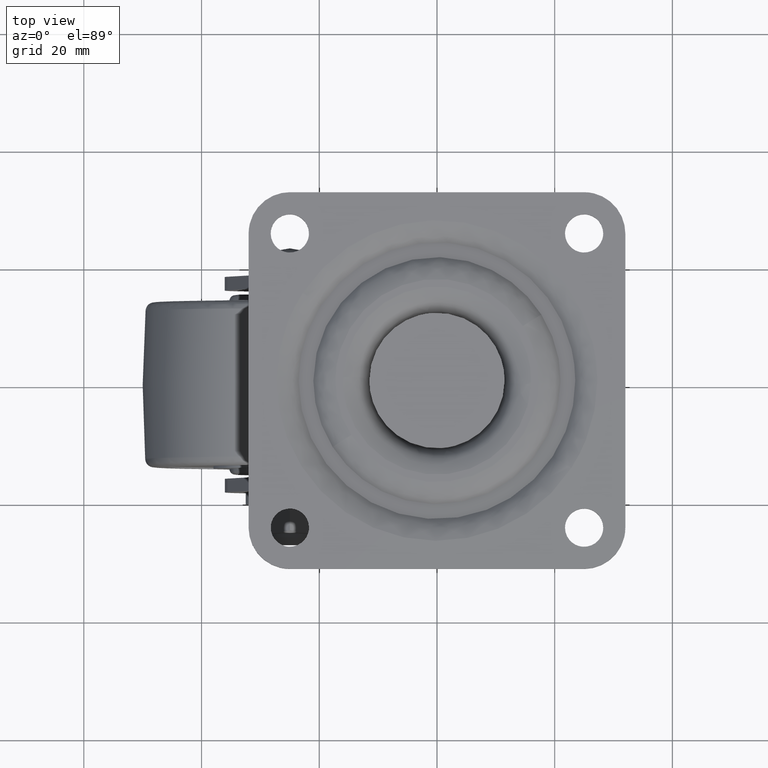
[diagram: clean part render]
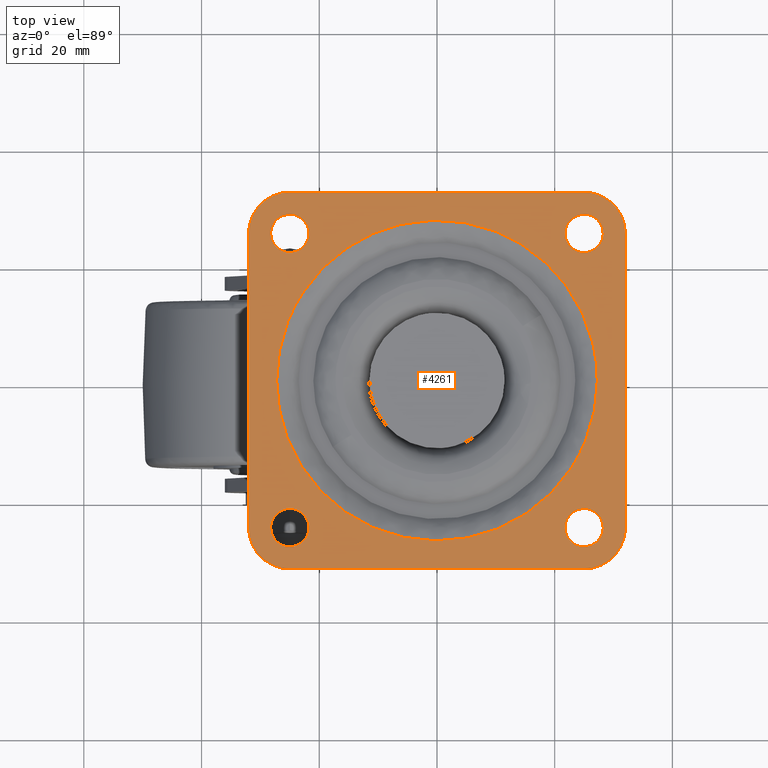
[diagram: same view with one face highlighted and labeled with its STEP entity id]
A machine part, top view. The second image highlights one B-rep face of the part: STEP entity #4261.
In plain terms, the highlighted face is a freeform B-spline surface patch.
Its self-contained STEP definition (entity closure, byte-faithful):
#2399=CARTESIAN_POINT('',(-25.198407753658440,21.756061905139340,1.249001E-016));
#2400=VERTEX_POINT('',#2399);
#2401=CARTESIAN_POINT('',(-21.750000000000000,25.0,0.0));
#2402=VERTEX_POINT('',#2401);
#2403=CARTESIAN_POINT('',(-25.198407753658440,21.756061905139337,0.0));
#2404=CARTESIAN_POINT('',(-25.099296480805727,21.750000000000007,0.0));
#2405=CARTESIAN_POINT('',(-25.0,21.750000000000000,0.0));
#2406=CARTESIAN_POINT('',(-21.750000000000004,21.750000000000004,0.0));
#2407=CARTESIAN_POINT('',(-21.750000000000000,25.0,0.0));
#2415=(BOUNDED_CURVE()B_SPLINE_CURVE(2,(#2403,#2404,#2405,#2406,#2407),.UNSPECIFIED.,.F.,.U.)B_SPLINE_CURVE_WITH_KNOTS((3,2,3),(0.239332962232918,0.250000000000000,0.500000000000000),.UNSPECIFIED.)CURVE()GEOMETRIC_REPRESENTATION_ITEM()RATIONAL_B_SPLINE_CURVE((0.976072041653805,0.987502787892779,1.0,0.707106781186547,1.0))REPRESENTATION_ITEM(''));
#2416=EDGE_CURVE('',#2400,#2402,#2415,.T.);
#2418=CARTESIAN_POINT('',(-24.801592246341560,28.243938094860660,1.249001E-016));
#2419=VERTEX_POINT('',#2418);
#2420=CARTESIAN_POINT('',(-21.750000000000000,25.0,0.0));
#2421=CARTESIAN_POINT('',(-21.750000000000007,28.057294717282854,0.0));
#2422=CARTESIAN_POINT('',(-24.801592246341567,28.243938094860660,0.0));
#2430=(BOUNDED_CURVE()B_SPLINE_CURVE(2,(#2420,#2421,#2422),.UNSPECIFIED.,.F.,.U.)B_SPLINE_CURVE_WITH_KNOTS((3,3),(0.500000000000000,0.739332962232918),.UNSPECIFIED.)CURVE()GEOMETRIC_REPRESENTATION_ITEM()RATIONAL_B_SPLINE_CURVE((1.0,0.719603993293769,0.976072041653806))REPRESENTATION_ITEM(''));
#2431=EDGE_CURVE('',#2402,#2419,#2430,.T.);
#2498=CARTESIAN_POINT('',(-28.250000000000000,25.0,0.0));
#2499=VERTEX_POINT('',#2498);
#2500=CARTESIAN_POINT('',(-28.250000000000000,25.0,0.0));
#2501=CARTESIAN_POINT('',(-28.250000000000004,21.942705282717160,0.0));
#2502=CARTESIAN_POINT('',(-25.198407753658433,21.756061905139340,0.0));
#2510=(BOUNDED_CURVE()B_SPLINE_CURVE(2,(#2500,#2501,#2502),.UNSPECIFIED.,.F.,.U.)B_SPLINE_CURVE_WITH_KNOTS((3,3),(0.0,0.239332962232918),.UNSPECIFIED.)CURVE()GEOMETRIC_REPRESENTATION_ITEM()RATIONAL_B_SPLINE_CURVE((1.0,0.719603993293769,0.976072041653805))REPRESENTATION_ITEM(''));
#2511=EDGE_CURVE('',#2499,#2400,#2510,.T.);
#2545=CARTESIAN_POINT('',(-24.801592246341571,28.243938094860660,0.0));
#2546=CARTESIAN_POINT('',(-24.900703519194270,28.250000000000000,0.0));
#2547=CARTESIAN_POINT('',(-25.0,28.250000000000000,0.0));
#2548=CARTESIAN_POINT('',(-28.250000000000004,28.250000000000004,0.0));
#2549=CARTESIAN_POINT('',(-28.250000000000000,25.0,0.0));
#2557=(BOUNDED_CURVE()B_SPLINE_CURVE(2,(#2545,#2546,#2547,#2548,#2549),.UNSPECIFIED.,.F.,.U.)B_SPLINE_CURVE_WITH_KNOTS((3,2,3),(0.739332962232918,0.750000000000000,1.0),.UNSPECIFIED.)CURVE()GEOMETRIC_REPRESENTATION_ITEM()RATIONAL_B_SPLINE_CURVE((0.976072041653805,0.987502787892779,1.0,0.707106781186547,1.0))REPRESENTATION_ITEM(''));
#2558=EDGE_CURVE('',#2419,#2499,#2557,.T.);
#2581=CARTESIAN_POINT('',(24.801592246341560,21.756061905139340,1.249001E-016));
#2582=VERTEX_POINT('',#2581);
#2583=CARTESIAN_POINT('',(28.250000000000000,25.0,0.0));
#2584=VERTEX_POINT('',#2583);
#2585=CARTESIAN_POINT('',(24.801592246341560,21.756061905139344,0.0));
#2586=CARTESIAN_POINT('',(24.900703519194273,21.750000000000004,0.0));
#2587=CARTESIAN_POINT('',(25.0,21.750000000000000,0.0));
#2588=CARTESIAN_POINT('',(28.250000000000004,21.750000000000004,0.0));
#2589=CARTESIAN_POINT('',(28.250000000000000,25.0,0.0));
#2597=(BOUNDED_CURVE()B_SPLINE_CURVE(2,(#2585,#2586,#2587,#2588,#2589),.UNSPECIFIED.,.F.,.U.)B_SPLINE_CURVE_WITH_KNOTS((3,2,3),(0.239332962232918,0.250000000000000,0.500000000000000),.UNSPECIFIED.)CURVE()GEOMETRIC_REPRESENTATION_ITEM()RATIONAL_B_SPLINE_CURVE((0.976072041653805,0.987502787892779,1.0,0.707106781186547,1.0))REPRESENTATION_ITEM(''));
#2598=EDGE_CURVE('',#2582,#2584,#2597,.T.);
#2600=CARTESIAN_POINT('',(25.198407753658440,28.243938094860660,1.249001E-016));
#2601=VERTEX_POINT('',#2600);
#2602=CARTESIAN_POINT('',(28.250000000000000,25.0,0.0));
#2603=CARTESIAN_POINT('',(28.250000000000004,28.057294717282844,0.0));
#2604=CARTESIAN_POINT('',(25.198407753658437,28.243938094860667,0.0));
#2612=(BOUNDED_CURVE()B_SPLINE_CURVE(2,(#2602,#2603,#2604),.UNSPECIFIED.,.F.,.U.)B_SPLINE_CURVE_WITH_KNOTS((3,3),(0.500000000000000,0.739332962232918),.UNSPECIFIED.)CURVE()GEOMETRIC_REPRESENTATION_ITEM()RATIONAL_B_SPLINE_CURVE((1.0,0.719603993293769,0.976072041653805))REPRESENTATION_ITEM(''));
#2613=EDGE_CURVE('',#2584,#2601,#2612,.T.);
#2680=CARTESIAN_POINT('',(21.750000000000000,25.0,0.0));
#2681=VERTEX_POINT('',#2680);
#2682=CARTESIAN_POINT('',(21.750000000000000,25.0,0.0));
#2683=CARTESIAN_POINT('',(21.750000000000007,21.942705282717164,0.0));
#2684=CARTESIAN_POINT('',(24.801592246341567,21.756061905139337,0.0));
#2692=(BOUNDED_CURVE()B_SPLINE_CURVE(2,(#2682,#2683,#2684),.UNSPECIFIED.,.F.,.U.)B_SPLINE_CURVE_WITH_KNOTS((3,3),(0.0,0.239332962232918),.UNSPECIFIED.)CURVE()GEOMETRIC_REPRESENTATION_ITEM()RATIONAL_B_SPLINE_CURVE((1.0,0.719603993293769,0.976072041653805))REPRESENTATION_ITEM(''));
#2693=EDGE_CURVE('',#2681,#2582,#2692,.T.);
#2727=CARTESIAN_POINT('',(25.198407753658437,28.243938094860667,0.0));
#2728=CARTESIAN_POINT('',(25.099296480805734,28.250000000000004,0.0));
#2729=CARTESIAN_POINT('',(25.0,28.250000000000000,0.0));
#2730=CARTESIAN_POINT('',(21.750000000000004,28.250000000000004,0.0));
#2731=CARTESIAN_POINT('',(21.750000000000000,25.0,0.0));
#2739=(BOUNDED_CURVE()B_SPLINE_CURVE(2,(#2727,#2728,#2729,#2730,#2731),.UNSPECIFIED.,.F.,.U.)B_SPLINE_CURVE_WITH_KNOTS((3,2,3),(0.739332962232918,0.750000000000000,1.0),.UNSPECIFIED.)CURVE()GEOMETRIC_REPRESENTATION_ITEM()RATIONAL_B_SPLINE_CURVE((0.976072041653805,0.987502787892779,1.0,0.707106781186547,1.0))REPRESENTATION_ITEM(''));
#2740=EDGE_CURVE('',#2601,#2681,#2739,.T.);
#2763=CARTESIAN_POINT('',(-25.198407753658440,-28.243938094860660,-1.387779E-016));
#2764=VERTEX_POINT('',#2763);
#2765=CARTESIAN_POINT('',(-21.750000000000000,-25.0,0.0));
#2766=VERTEX_POINT('',#2765);
#2767=CARTESIAN_POINT('',(-25.198407753658440,-28.243938094860660,0.0));
#2768=CARTESIAN_POINT('',(-25.099296480805727,-28.249999999999996,0.0));
#2769=CARTESIAN_POINT('',(-25.0,-28.250000000000000,0.0));
#2770=CARTESIAN_POINT('',(-21.750000000000004,-28.250000000000004,0.0));
#2771=CARTESIAN_POINT('',(-21.750000000000000,-25.0,0.0));
#2779=(BOUNDED_CURVE()B_SPLINE_CURVE(2,(#2767,#2768,#2769,#2770,#2771),.UNSPECIFIED.,.F.,.U.)B_SPLINE_CURVE_WITH_KNOTS((3,2,3),(0.239332962232918,0.250000000000000,0.500000000000000),.UNSPECIFIED.)CURVE()GEOMETRIC_REPRESENTATION_ITEM()RATIONAL_B_SPLINE_CURVE((0.976072041653805,0.987502787892779,1.0,0.707106781186547,1.0))REPRESENTATION_ITEM(''));
#2780=EDGE_CURVE('',#2764,#2766,#2779,.T.);
#2782=CARTESIAN_POINT('',(-24.801592246341560,-21.756061905139340,-1.387779E-016));
#2783=VERTEX_POINT('',#2782);
#2784=CARTESIAN_POINT('',(-21.750000000000000,-25.0,0.0));
#2785=CARTESIAN_POINT('',(-21.750000000000007,-21.942705282717149,0.0));
#2786=CARTESIAN_POINT('',(-24.801592246341567,-21.756061905139340,0.0));
#2794=(BOUNDED_CURVE()B_SPLINE_CURVE(2,(#2784,#2785,#2786),.UNSPECIFIED.,.F.,.U.)B_SPLINE_CURVE_WITH_KNOTS((3,3),(0.500000000000000,0.739332962232918),.UNSPECIFIED.)CURVE()GEOMETRIC_REPRESENTATION_ITEM()RATIONAL_B_SPLINE_CURVE((1.0,0.719603993293769,0.976072041653806))REPRESENTATION_ITEM(''));
#2795=EDGE_CURVE('',#2766,#2783,#2794,.T.);
#2862=CARTESIAN_POINT('',(-28.250000000000000,-25.0,0.0));
#2863=VERTEX_POINT('',#2862);
#2864=CARTESIAN_POINT('',(-28.250000000000000,-25.0,0.0));
#2865=CARTESIAN_POINT('',(-28.250000000000004,-28.057294717282836,0.0));
#2866=CARTESIAN_POINT('',(-25.198407753658444,-28.243938094860653,0.0));
#2874=(BOUNDED_CURVE()B_SPLINE_CURVE(2,(#2864,#2865,#2866),.UNSPECIFIED.,.F.,.U.)B_SPLINE_CURVE_WITH_KNOTS((3,3),(0.0,0.239332962232918),.UNSPECIFIED.)CURVE()GEOMETRIC_REPRESENTATION_ITEM()RATIONAL_B_SPLINE_CURVE((1.0,0.719603993293769,0.976072041653805))REPRESENTATION_ITEM(''));
#2875=EDGE_CURVE('',#2863,#2764,#2874,.T.);
#2909=CARTESIAN_POINT('',(-24.801592246341567,-21.756061905139340,0.0));
#2910=CARTESIAN_POINT('',(-24.900703519194277,-21.750000000000007,0.0));
#2911=CARTESIAN_POINT('',(-25.0,-21.750000000000000,0.0));
#2912=CARTESIAN_POINT('',(-28.250000000000004,-21.750000000000004,0.0));
#2913=CARTESIAN_POINT('',(-28.250000000000000,-25.0,0.0));
#2921=(BOUNDED_CURVE()B_SPLINE_CURVE(2,(#2909,#2910,#2911,#2912,#2913),.UNSPECIFIED.,.F.,.U.)B_SPLINE_CURVE_WITH_KNOTS((3,2,3),(0.739332962232918,0.750000000000000,1.0),.UNSPECIFIED.)CURVE()GEOMETRIC_REPRESENTATION_ITEM()RATIONAL_B_SPLINE_CURVE((0.976072041653806,0.987502787892779,1.0,0.707106781186547,1.0))REPRESENTATION_ITEM(''));
#2922=EDGE_CURVE('',#2783,#2863,#2921,.T.);
#2945=CARTESIAN_POINT('',(24.801592246341560,-28.243938094860660,1.249001E-016));
#2946=VERTEX_POINT('',#2945);
#2947=CARTESIAN_POINT('',(28.250000000000000,-25.0,0.0));
#2948=VERTEX_POINT('',#2947);
#2949=CARTESIAN_POINT('',(24.801592246341571,-28.243938094860663,0.0));
#2950=CARTESIAN_POINT('',(24.900703519194273,-28.250000000000004,0.0));
#2951=CARTESIAN_POINT('',(25.0,-28.250000000000000,0.0));
#2952=CARTESIAN_POINT('',(28.250000000000004,-28.250000000000004,0.0));
#2953=CARTESIAN_POINT('',(28.250000000000000,-25.0,0.0));
#2961=(BOUNDED_CURVE()B_SPLINE_CURVE(2,(#2949,#2950,#2951,#2952,#2953),.UNSPECIFIED.,.F.,.U.)B_SPLINE_CURVE_WITH_KNOTS((3,2,3),(0.239332962232918,0.250000000000000,0.500000000000000),.UNSPECIFIED.)CURVE()GEOMETRIC_REPRESENTATION_ITEM()RATIONAL_B_SPLINE_CURVE((0.976072041653805,0.987502787892779,1.0,0.707106781186547,1.0))REPRESENTATION_ITEM(''));
#2962=EDGE_CURVE('',#2946,#2948,#2961,.T.);
#2964=CARTESIAN_POINT('',(25.198407753658440,-21.756061905139340,1.249001E-016));
#2965=VERTEX_POINT('',#2964);
#2966=CARTESIAN_POINT('',(28.250000000000000,-25.0,0.0));
#2967=CARTESIAN_POINT('',(28.250000000000004,-21.942705282717167,0.0));
#2968=CARTESIAN_POINT('',(25.198407753658437,-21.756061905139344,0.0));
#2976=(BOUNDED_CURVE()B_SPLINE_CURVE(2,(#2966,#2967,#2968),.UNSPECIFIED.,.F.,.U.)B_SPLINE_CURVE_WITH_KNOTS((3,3),(0.500000000000000,0.739332962232918),.UNSPECIFIED.)CURVE()GEOMETRIC_REPRESENTATION_ITEM()RATIONAL_B_SPLINE_CURVE((1.0,0.719603993293769,0.976072041653805))REPRESENTATION_ITEM(''));
#2977=EDGE_CURVE('',#2948,#2965,#2976,.T.);
#3044=CARTESIAN_POINT('',(21.750000000000000,-25.0,0.0));
#3045=VERTEX_POINT('',#3044);
#3046=CARTESIAN_POINT('',(21.750000000000000,-25.0,0.0));
#3047=CARTESIAN_POINT('',(21.750000000000007,-28.057294717282840,0.0));
#3048=CARTESIAN_POINT('',(24.801592246341567,-28.243938094860660,0.0));
#3056=(BOUNDED_CURVE()B_SPLINE_CURVE(2,(#3046,#3047,#3048),.UNSPECIFIED.,.F.,.U.)B_SPLINE_CURVE_WITH_KNOTS((3,3),(0.0,0.239332962232918),.UNSPECIFIED.)CURVE()GEOMETRIC_REPRESENTATION_ITEM()RATIONAL_B_SPLINE_CURVE((1.0,0.719603993293769,0.976072041653805))REPRESENTATION_ITEM(''));
#3057=EDGE_CURVE('',#3045,#2946,#3056,.T.);
#3091=CARTESIAN_POINT('',(25.198407753658429,-21.756061905139340,0.0));
#3092=CARTESIAN_POINT('',(25.099296480805730,-21.750000000000004,0.0));
#3093=CARTESIAN_POINT('',(25.0,-21.750000000000000,0.0));
#3094=CARTESIAN_POINT('',(21.750000000000004,-21.750000000000004,0.0));
#3095=CARTESIAN_POINT('',(21.750000000000000,-25.0,0.0));
#3103=(BOUNDED_CURVE()B_SPLINE_CURVE(2,(#3091,#3092,#3093,#3094,#3095),.UNSPECIFIED.,.F.,.U.)B_SPLINE_CURVE_WITH_KNOTS((3,2,3),(0.739332962232918,0.750000000000000,1.0),.UNSPECIFIED.)CURVE()GEOMETRIC_REPRESENTATION_ITEM()RATIONAL_B_SPLINE_CURVE((0.976072041653805,0.987502787892779,1.0,0.707106781186547,1.0))REPRESENTATION_ITEM(''));
#3104=EDGE_CURVE('',#2965,#3045,#3103,.T.);
#3840=CARTESIAN_POINT('',(-22.815651917583200,14.884687591186140,-8.522812E-016));
#3841=VERTEX_POINT('',#3840);
#3855=CARTESIAN_POINT('',(-27.241657386774001,0.0,0.0));
#3856=VERTEX_POINT('',#3855);
#3857=CARTESIAN_POINT('',(-27.241657386774001,0.0,0.0));
#3858=CARTESIAN_POINT('',(-27.241657386260183,8.100386642757956,-4.261406E-016));
#3859=CARTESIAN_POINT('',(-22.815651917583200,14.884687591186145,-8.522812E-016));
#3867=(BOUNDED_CURVE()B_SPLINE_CURVE(2,(#3857,#3858,#3859),.UNSPECIFIED.,.F.,.U.)B_SPLINE_CURVE_WITH_KNOTS((3,3),(0.0,0.093601467029614),.UNSPECIFIED.)CURVE()GEOMETRIC_REPRESENTATION_ITEM()RATIONAL_B_SPLINE_CURVE((1.0,0.890339060144140,0.862793519059119))REPRESENTATION_ITEM(''));
#3868=EDGE_CURVE('',#3856,#3841,#3867,.T.);
#3870=CARTESIAN_POINT('',(22.815651917583210,-14.884687591186131,-7.305267E-016));
#3871=VERTEX_POINT('',#3870);
#3872=CARTESIAN_POINT('',(22.815651917583210,-14.884687591186131,-7.305267E-016));
#3873=CARTESIAN_POINT('',(21.921473836661828,-16.255622269632688,-7.240033E-016));
#3874=CARTESIAN_POINT('',(20.167708254292180,-18.477110509688551,-7.093453E-016));
#3875=CARTESIAN_POINT('',(17.527683681939472,-20.923725761891991,-6.837018E-016));
#3876=CARTESIAN_POINT('',(15.227699141720390,-22.635264617561209,-6.596869E-016));
#3877=CARTESIAN_POINT('',(13.167199152127431,-23.890424019089789,-6.370635E-016));
#3878=CARTESIAN_POINT('',(10.431440802053141,-25.235750842860028,-6.057455E-016));
#3879=CARTESIAN_POINT('',(7.421294585294656,-26.298301066020400,-5.696210E-016));
#3880=CARTESIAN_POINT('',(3.586096827380413,-27.092314096703689,-5.213634E-016));
#3881=CARTESIAN_POINT('',(-0.373335725184461,-27.355970209846380,-4.693255E-016));
#3882=CARTESIAN_POINT('',(-4.324099114553206,-26.984384806978259,-4.148711E-016));
#3883=CARTESIAN_POINT('',(-7.692909588651690,-26.190387895406140,-3.665355E-016));
#3884=CARTESIAN_POINT('',(-10.438370074138380,-25.214276792365268,-3.258319E-016));
#3885=CARTESIAN_POINT('',(-12.945697363022671,-24.020834206090640,-2.874548E-016));
#3886=CARTESIAN_POINT('',(-15.788572644260690,-22.299921341433301,-2.424755E-016));
#3887=CARTESIAN_POINT('',(-18.562042710901888,-20.070524491737849,-1.963995E-016));
#3888=CARTESIAN_POINT('',(-21.042235356447840,-17.400272435882499,-1.524982E-016));
#3889=CARTESIAN_POINT('',(-22.868595976042670,-14.899913483699510,-1.180409E-016));
#3890=CARTESIAN_POINT('',(-24.597632875297212,-11.902711186287229,-8.290774E-017));
#3891=CARTESIAN_POINT('',(-25.840474648184639,-8.862237391571378,-5.412105E-017));
#3892=CARTESIAN_POINT('',(-26.660484443133761,-5.783739511230263,-3.085221E-017));
#3893=CARTESIAN_POINT('',(-27.124032158072310,-3.046175007171947,-1.372221E-017));
#3894=CARTESIAN_POINT('',(-27.241690879070909,-1.091167973817993,-4.350023E-018));
#3895=CARTESIAN_POINT('',(-27.241657386774001,0.0,0.0));
#3896=B_SPLINE_CURVE_WITH_KNOTS('',3,(#3872,#3873,#3874,#3875,#3876,#3877,#3878,#3879,#3880,#3881,#3882,#3883,#3884,#3885,#3886,#3887,#3888,#3889,#3890,#3891,#3892,#3893,#3894,#3895),.UNSPECIFIED.,.F.,.U.,(4,1,1,1,1,1,1,1,1,1,1,1,1,1,1,1,1,1,1,1,1,4),(0.000000055416237,4.910282948320941,8.456600339258053,10.775359753858149,13.503289116098561,15.685631214326341,19.913962097363349,23.051077622115489,27.415735458507740,31.780438801504619,34.917565481616478,37.781872166200699,40.509837047126616,43.237757784488977,47.738864590221127,51.148793627644253,54.149530352902900,57.013857607342487,61.514941757182591,63.970087515833832,66.561638237592220,69.835140570289653),.UNSPECIFIED.);
#3897=EDGE_CURVE('',#3871,#3856,#3896,.T.);
#3940=CARTESIAN_POINT('',(27.241657386774001,0.0,0.0));
#3941=VERTEX_POINT('',#3940);
#3942=CARTESIAN_POINT('',(27.241657386774001,0.0,0.0));
#3943=CARTESIAN_POINT('',(27.241657386260190,-8.100386642757954,-3.652634E-016));
#3944=CARTESIAN_POINT('',(22.815651917583200,-14.884687591186132,-7.305267E-016));
#3952=(BOUNDED_CURVE()B_SPLINE_CURVE(2,(#3942,#3943,#3944),.UNSPECIFIED.,.F.,.U.)B_SPLINE_CURVE_WITH_KNOTS((3,3),(0.500000000000000,0.593601467029614),.UNSPECIFIED.)CURVE()GEOMETRIC_REPRESENTATION_ITEM()RATIONAL_B_SPLINE_CURVE((1.0,0.890339060144140,0.862793519059119))REPRESENTATION_ITEM(''));
#3953=EDGE_CURVE('',#3941,#3871,#3952,.T.);
#3955=CARTESIAN_POINT('',(-22.815651917583200,14.884687591186140,-8.522812E-016));
#3956=CARTESIAN_POINT('',(-22.120114559669620,15.950917954581540,-8.463605E-016));
#3957=CARTESIAN_POINT('',(-20.579183743791418,17.985599651775761,-8.317200E-016));
#3958=CARTESIAN_POINT('',(-17.734819553766460,20.813358102199381,-8.003790E-016));
#3959=CARTESIAN_POINT('',(-14.828009349613369,22.942751147329432,-7.648127E-016));
#3960=CARTESIAN_POINT('',(-11.481016365029831,24.791107832756730,-7.210533E-016));
#3961=CARTESIAN_POINT('',(-8.296496046934836,26.042422804086499,-6.770584E-016));
#3962=CARTESIAN_POINT('',(-5.062706104431491,26.813793728204629,-6.300603E-016));
#3963=CARTESIAN_POINT('',(-2.311709691160423,27.184815118481101,-5.887524E-016));
#3964=CARTESIAN_POINT('',(0.417904798657650,27.291137922984369,-5.465476E-016));
#3965=CARTESIAN_POINT('',(3.007230595283995,27.112903415919948,-5.052138E-016));
#3966=CARTESIAN_POINT('',(5.747391244357483,26.673947655281982,-4.603078E-016));
#3967=CARTESIAN_POINT('',(8.787870100867105,25.876628200774942,-4.090369E-016));
#3968=CARTESIAN_POINT('',(12.029378054580750,24.528358322204639,-3.520586E-016));
#3969=CARTESIAN_POINT('',(14.867372413236950,22.886902874060830,-3.000287E-016));
#3970=CARTESIAN_POINT('',(17.516805871266140,20.957286570832380,-2.496081E-016));
#3971=CARTESIAN_POINT('',(19.974731747587679,18.645980759269040,-2.004078E-016));
#3972=CARTESIAN_POINT('',(22.125188087627869,15.991698235864490,-1.544219E-016));
#3973=CARTESIAN_POINT('',(23.840400921233321,13.305628524082140,-1.150967E-016));
#3974=CARTESIAN_POINT('',(25.136679743061730,10.643385628225831,-8.243566E-017));
#3975=CARTESIAN_POINT('',(26.055065070976511,8.071416837530627,-5.610591E-017));
#3976=CARTESIAN_POINT('',(26.675694568832110,5.693976442021447,-3.533879E-017));
#3977=CARTESIAN_POINT('',(27.124036841307070,3.046176884694721,-1.600918E-017));
#3978=CARTESIAN_POINT('',(27.241688250822151,1.091167156898190,-5.075065E-018));
#3979=CARTESIAN_POINT('',(27.241657386774001,0.0,0.0));
#3980=B_SPLINE_CURVE_WITH_KNOTS('',3,(#3955,#3956,#3957,#3958,#3959,#3960,#3961,#3962,#3963,#3964,#3965,#3966,#3967,#3968,#3969,#3970,#3971,#3972,#3973,#3974,#3975,#3976,#3977,#3978,#3979),.UNSPECIFIED.,.F.,.U.,(4,1,1,1,1,1,1,1,1,1,1,1,1,1,1,1,1,1,1,1,1,1,4),(0.000000055458528,3.819104908495774,7.638224861833649,12.002916825908530,14.594458956445351,19.095550224088381,22.232677403481279,24.551450529475080,27.415735458530190,30.416423997888760,32.326020543770362,35.735915217616480,39.827830256769687,42.828566940662441,45.556515767512487,49.648424793788017,52.921948041938272,55.786297588175543,59.196203727123773,61.787769714082529,63.970087515834557,66.561638237592575,69.835140570289710),.UNSPECIFIED.);
#3981=EDGE_CURVE('',#3841,#3941,#3980,.T.);
#4136=CARTESIAN_POINT('',(-35.196799875955577,35.196799875955577,0.0));
#4137=CARTESIAN_POINT('',(35.196801592569351,35.196799875955577,0.0));
#4138=CARTESIAN_POINT('',(-35.196799875955577,-35.196801592569351,0.0));
#4139=CARTESIAN_POINT('',(35.196801592569351,-35.196801592569351,0.0));
#4140=B_SPLINE_SURFACE_WITH_KNOTS('',1,1,((#4136,#4138),(#4137,#4139)),.UNSPECIFIED.,.F.,.F.,.U.,(2,2),(2,2),(0.0,70.393601468524935),(0.0,70.393601468524935),.UNSPECIFIED.);
#4141=CARTESIAN_POINT('',(25.0,32.0,0.0));
#4142=VERTEX_POINT('',#4141);
#4143=CARTESIAN_POINT('',(-25.0,32.0,0.0));
#4144=VERTEX_POINT('',#4143);
#4145=CARTESIAN_POINT('',(25.0,32.0,0.0));
#4146=CARTESIAN_POINT('',(-25.0,32.0,0.0));
#4147=QUASI_UNIFORM_CURVE('',1,(#4145,#4146),.UNSPECIFIED.,.F.,.U.);
#4148=EDGE_CURVE('',#4142,#4144,#4147,.T.);
#4149=ORIENTED_EDGE('',*,*,#4148,.T.);
#4150=CARTESIAN_POINT('',(-32.0,25.0,0.0));
#4151=VERTEX_POINT('',#4150);
#4152=CARTESIAN_POINT('',(-25.0,32.0,0.0));
#4153=CARTESIAN_POINT('',(-32.0,32.0,0.0));
#4154=CARTESIAN_POINT('',(-32.0,25.0,0.0));
#4162=(BOUNDED_CURVE()B_SPLINE_CURVE(2,(#4152,#4153,#4154),.UNSPECIFIED.,.F.,.U.)CURVE()GEOMETRIC_REPRESENTATION_ITEM()QUASI_UNIFORM_CURVE()RATIONAL_B_SPLINE_CURVE((1.0,0.707106781186547,1.0))REPRESENTATION_ITEM(''));
#4163=EDGE_CURVE('',#4144,#4151,#4162,.T.);
#4164=ORIENTED_EDGE('',*,*,#4163,.T.);
#4165=CARTESIAN_POINT('',(-32.0,-25.0,0.0));
#4166=VERTEX_POINT('',#4165);
#4167=CARTESIAN_POINT('',(-32.0,25.0,0.0));
#4168=CARTESIAN_POINT('',(-32.0,-25.0,0.0));
#4169=QUASI_UNIFORM_CURVE('',1,(#4167,#4168),.UNSPECIFIED.,.F.,.U.);
#4170=EDGE_CURVE('',#4151,#4166,#4169,.T.);
#4171=ORIENTED_EDGE('',*,*,#4170,.T.);
#4172=CARTESIAN_POINT('',(-25.0,-32.0,0.0));
#4173=VERTEX_POINT('',#4172);
#4174=CARTESIAN_POINT('',(-32.0,-25.0,0.0));
#4175=CARTESIAN_POINT('',(-32.0,-32.0,0.0));
#4176=CARTESIAN_POINT('',(-25.0,-32.0,0.0));
#4184=(BOUNDED_CURVE()B_SPLINE_CURVE(2,(#4174,#4175,#4176),.UNSPECIFIED.,.F.,.U.)CURVE()GEOMETRIC_REPRESENTATION_ITEM()QUASI_UNIFORM_CURVE()RATIONAL_B_SPLINE_CURVE((1.0,0.707106781186547,1.0))REPRESENTATION_ITEM(''));
#4185=EDGE_CURVE('',#4166,#4173,#4184,.T.);
#4186=ORIENTED_EDGE('',*,*,#4185,.T.);
#4187=CARTESIAN_POINT('',(25.0,-32.0,0.0));
#4188=VERTEX_POINT('',#4187);
#4189=CARTESIAN_POINT('',(-25.0,-32.0,0.0));
#4190=CARTESIAN_POINT('',(25.0,-32.0,0.0));
#4191=QUASI_UNIFORM_CURVE('',1,(#4189,#4190),.UNSPECIFIED.,.F.,.U.);
#4192=EDGE_CURVE('',#4173,#4188,#4191,.T.);
#4193=ORIENTED_EDGE('',*,*,#4192,.T.);
#4194=CARTESIAN_POINT('',(32.0,-25.0,0.0));
#4195=VERTEX_POINT('',#4194);
#4196=CARTESIAN_POINT('',(25.0,-32.0,0.0));
#4197=CARTESIAN_POINT('',(32.0,-32.0,0.0));
#4198=CARTESIAN_POINT('',(32.0,-25.0,0.0));
#4206=(BOUNDED_CURVE()B_SPLINE_CURVE(2,(#4196,#4197,#4198),.UNSPECIFIED.,.F.,.U.)CURVE()GEOMETRIC_REPRESENTATION_ITEM()QUASI_UNIFORM_CURVE()RATIONAL_B_SPLINE_CURVE((1.0,0.707106781186547,1.0))REPRESENTATION_ITEM(''));
#4207=EDGE_CURVE('',#4188,#4195,#4206,.T.);
#4208=ORIENTED_EDGE('',*,*,#4207,.T.);
#4209=CARTESIAN_POINT('',(32.0,25.0,0.0));
#4210=VERTEX_POINT('',#4209);
#4211=CARTESIAN_POINT('',(32.0,-25.0,0.0));
#4212=CARTESIAN_POINT('',(32.0,25.0,0.0));
#4213=QUASI_UNIFORM_CURVE('',1,(#4211,#4212),.UNSPECIFIED.,.F.,.U.);
#4214=EDGE_CURVE('',#4195,#4210,#4213,.T.);
#4215=ORIENTED_EDGE('',*,*,#4214,.T.);
#4216=CARTESIAN_POINT('',(32.0,25.0,0.0));
#4217=CARTESIAN_POINT('',(32.0,32.0,0.0));
#4218=CARTESIAN_POINT('',(25.0,32.0,0.0));
#4226=(BOUNDED_CURVE()B_SPLINE_CURVE(2,(#4216,#4217,#4218),.UNSPECIFIED.,.F.,.U.)CURVE()GEOMETRIC_REPRESENTATION_ITEM()QUASI_UNIFORM_CURVE()RATIONAL_B_SPLINE_CURVE((1.0,0.707106781186547,1.0))REPRESENTATION_ITEM(''));
#4227=EDGE_CURVE('',#4210,#4142,#4226,.T.);
#4228=ORIENTED_EDGE('',*,*,#4227,.T.);
#4229=EDGE_LOOP('',(#4149,#4164,#4171,#4186,#4193,#4208,#4215,#4228));
#4230=FACE_OUTER_BOUND('',#4229,.T.);
#4231=ORIENTED_EDGE('',*,*,#3868,.T.);
#4232=ORIENTED_EDGE('',*,*,#3981,.T.);
#4233=ORIENTED_EDGE('',*,*,#3953,.T.);
#4234=ORIENTED_EDGE('',*,*,#3897,.T.);
#4235=EDGE_LOOP('',(#4231,#4232,#4233,#4234));
#4236=FACE_BOUND('',#4235,.T.);
#4237=ORIENTED_EDGE('',*,*,#2977,.F.);
#4238=ORIENTED_EDGE('',*,*,#2962,.F.);
#4239=ORIENTED_EDGE('',*,*,#3057,.F.);
#4240=ORIENTED_EDGE('',*,*,#3104,.F.);
#4241=EDGE_LOOP('',(#4237,#4238,#4239,#4240));
#4242=FACE_BOUND('',#4241,.T.);
#4243=ORIENTED_EDGE('',*,*,#2795,.F.);
#4244=ORIENTED_EDGE('',*,*,#2780,.F.);
#4245=ORIENTED_EDGE('',*,*,#2875,.F.);
#4246=ORIENTED_EDGE('',*,*,#2922,.F.);
#4247=EDGE_LOOP('',(#4243,#4244,#4245,#4246));
#4248=FACE_BOUND('',#4247,.T.);
#4249=ORIENTED_EDGE('',*,*,#2613,.F.);
#4250=ORIENTED_EDGE('',*,*,#2598,.F.);
#4251=ORIENTED_EDGE('',*,*,#2693,.F.);
#4252=ORIENTED_EDGE('',*,*,#2740,.F.);
#4253=EDGE_LOOP('',(#4249,#4250,#4251,#4252));
#4254=FACE_BOUND('',#4253,.T.);
#4255=ORIENTED_EDGE('',*,*,#2431,.F.);
#4256=ORIENTED_EDGE('',*,*,#2416,.F.);
#4257=ORIENTED_EDGE('',*,*,#2511,.F.);
#4258=ORIENTED_EDGE('',*,*,#2558,.F.);
#4259=EDGE_LOOP('',(#4255,#4256,#4257,#4258));
#4260=FACE_BOUND('',#4259,.T.);
#4261=ADVANCED_FACE('',(#4230,#4236,#4242,#4248,#4254,#4260),#4140,.F.);